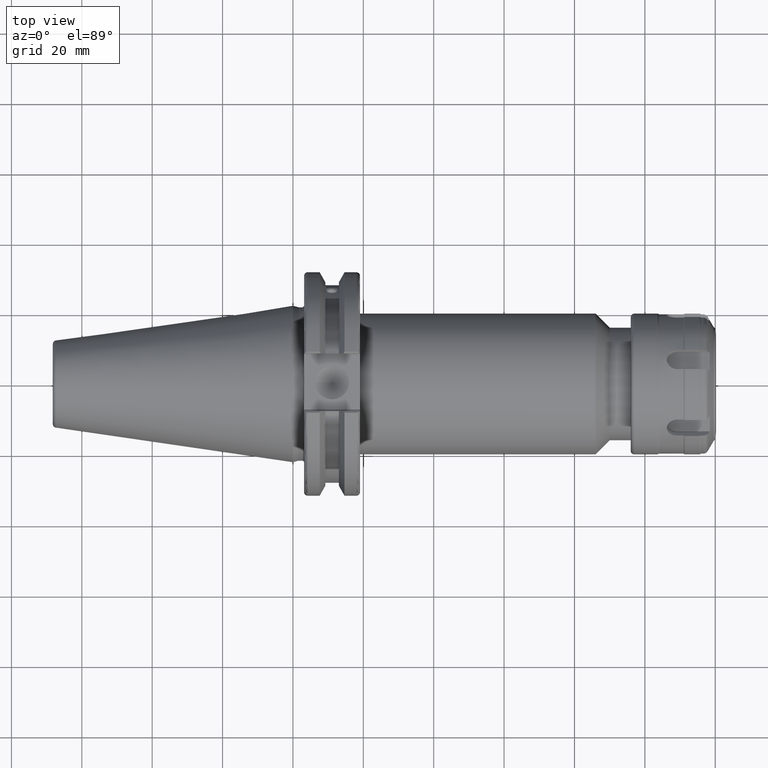
[diagram: clean part render]
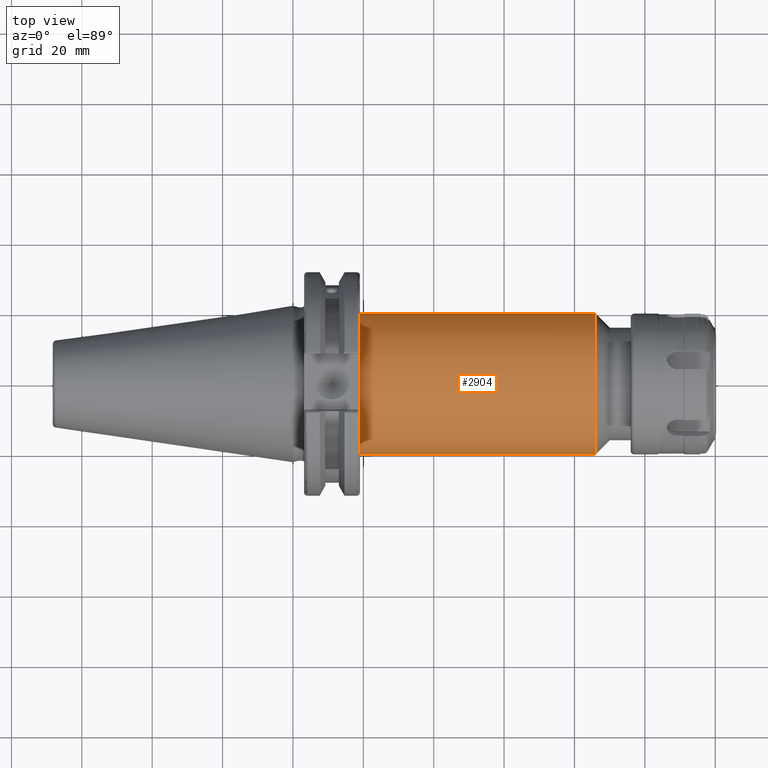
[diagram: same view with one face highlighted and labeled with its STEP entity id]
A machine part, top view. The second image highlights one B-rep face of the part: STEP entity #2904.
In plain terms, the highlighted cylindrical surface (bore or boss wall) has radius 20 mm, axis along (1, 0, 0).
Its self-contained STEP definition (entity closure, byte-faithful):
#441=CYLINDRICAL_SURFACE('',#3173,20.);
#493=FACE_OUTER_BOUND('',#652,.T.);
#652=EDGE_LOOP('',(#2055,#2056,#2057,#2058));
#820=LINE('',#4506,#1010);
#1010=VECTOR('',#3552,20.);
#1204=CIRCLE('',#3174,20.);
#1205=CIRCLE('',#3175,20.);
#1341=VERTEX_POINT('',#4503);
#1342=VERTEX_POINT('',#4505);
#1622=EDGE_CURVE('',#1341,#1341,#1204,.T.);
#1623=EDGE_CURVE('',#1341,#1342,#820,.T.);
#1624=EDGE_CURVE('',#1342,#1342,#1205,.T.);
#2055=ORIENTED_EDGE('',*,*,#1622,.F.);
#2056=ORIENTED_EDGE('',*,*,#1623,.T.);
#2057=ORIENTED_EDGE('',*,*,#1624,.F.);
#2058=ORIENTED_EDGE('',*,*,#1623,.F.);
#2904=ADVANCED_FACE('',(#493),#441,.T.);
#3173=AXIS2_PLACEMENT_3D('',#4502,#3548,#3549);
#3174=AXIS2_PLACEMENT_3D('',#4504,#3550,#3551);
#3175=AXIS2_PLACEMENT_3D('',#4507,#3553,#3554);
#3548=DIRECTION('center_axis',(1.,0.,0.));
#3549=DIRECTION('ref_axis',(0.,1.,0.));
#3550=DIRECTION('center_axis',(1.,0.,0.));
#3551=DIRECTION('ref_axis',(0.,0.,-1.));
#3552=DIRECTION('',(-1.,0.,0.));
#3553=DIRECTION('center_axis',(-1.,0.,0.));
#3554=DIRECTION('ref_axis',(0.,1.,0.));
#4502=CARTESIAN_POINT('Origin',(52.525,0.,0.));
#4503=CARTESIAN_POINT('',(86.,-20.,-2.44929359829471E-15));
#4504=CARTESIAN_POINT('Origin',(86.,0.,0.));
#4505=CARTESIAN_POINT('',(19.05,-20.,-2.44929359829471E-15));
#4506=CARTESIAN_POINT('',(52.525,-20.,-2.44929359829471E-15));
#4507=CARTESIAN_POINT('Origin',(19.05,0.,0.));